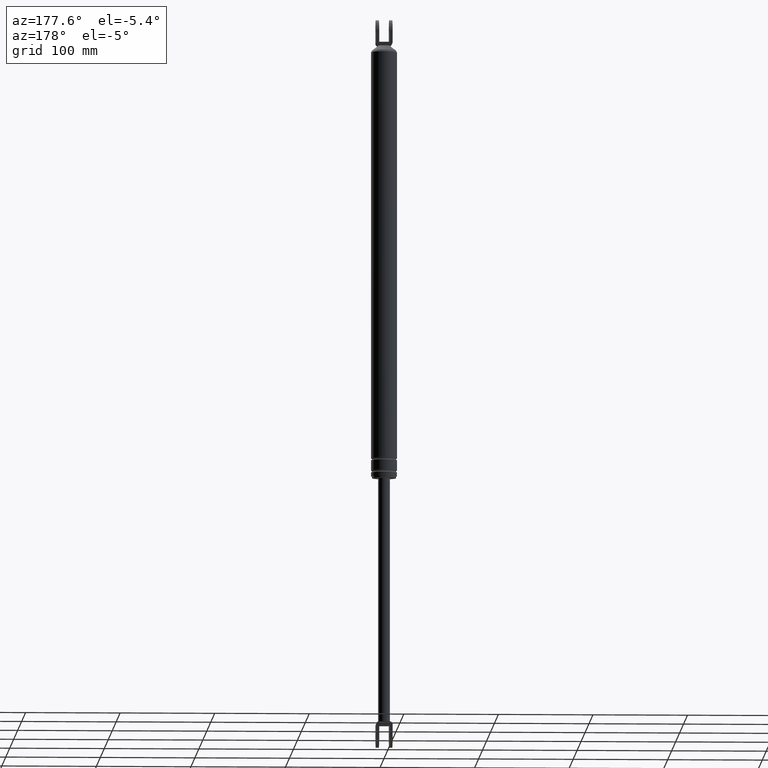
[diagram: clean part render]
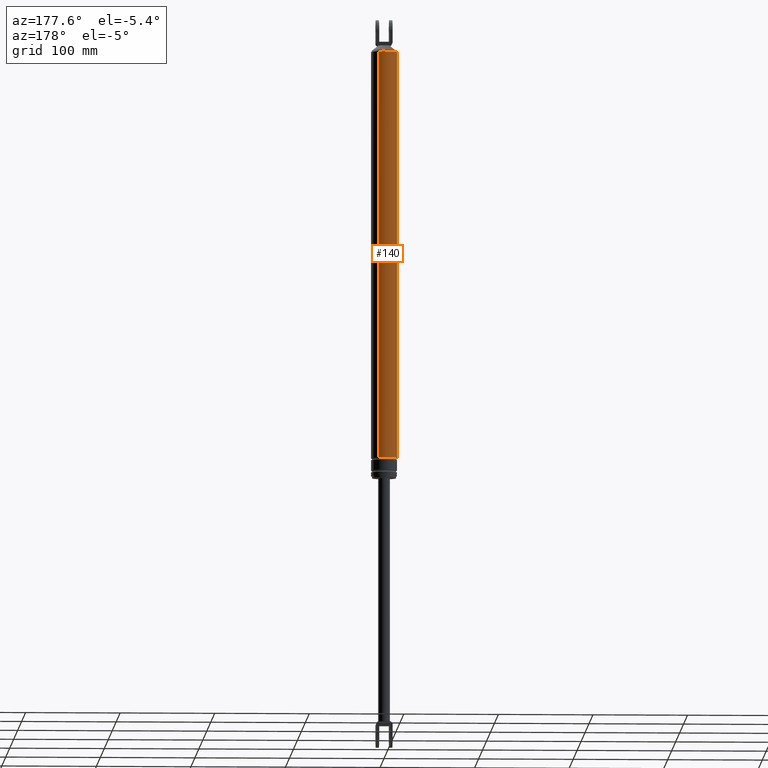
[diagram: same view with one face highlighted and labeled with its STEP entity id]
A machine part, auxiliary view. The second image highlights one B-rep face of the part: STEP entity #140.
In plain terms, the highlighted cylindrical surface (edge-blend (fillet) strip) has radius 13.7 mm, axis along (-0, 0, 1).
Its self-contained STEP definition (entity closure, byte-faithful):
#140=ADVANCED_FACE('',(#461),#460,.T.);
#460=CYLINDRICAL_SURFACE('',#1394,1.37000000000E+001);
#461=FACE_OUTER_BOUND('',#1395,.T.);
#1391=CARTESIAN_POINT('',(-3.41546421043E-012,4.03842046607E-012,5.12774968225E+002));
#1392=DIRECTION('',(-1.51010197831E-014,1.78416878900E-014,1.00000000000E+000));
#1393=DIRECTION('',(-4.84219732255E-001,-8.74946427443E-001,8.29830932274E-015));
#1394=AXIS2_PLACEMENT_3D('',#1391,#1392,#1393);
#1395=EDGE_LOOP('',(#2343,#2344,#2345,#2346,#2347,#2348,#2349));
#2343=ORIENTED_EDGE('',*,*,#2648,.F.);
#2344=ORIENTED_EDGE('',*,*,#2649,.F.);
#2345=ORIENTED_EDGE('',*,*,#2650,.F.);
#2346=ORIENTED_EDGE('',*,*,#2643,.T.);
#2347=ORIENTED_EDGE('',*,*,#2634,.T.);
#2348=ORIENTED_EDGE('',*,*,#2642,.T.);
#2349=ORIENTED_EDGE('',*,*,#2647,.F.);
#2634=EDGE_CURVE('',#3296,#3297,#3298,.T.);
#2642=EDGE_CURVE('',#3297,#3344,#3351,.T.);
#2643=EDGE_CURVE('',#3357,#3296,#3358,.T.);
#2647=EDGE_CURVE('',#3378,#3344,#3385,.T.);
#2648=EDGE_CURVE('',#3391,#3378,#3392,.T.);
#2649=EDGE_CURVE('',#3398,#3391,#3399,.T.);
#2650=EDGE_CURVE('',#3357,#3398,#3405,.T.);
#3296=VERTEX_POINT('',#4390);
#3297=VERTEX_POINT('',#4391);
#3298=CIRCLE('',#4395,1.37000000066E+001);
#3344=VERTEX_POINT('',#4420);
#3351=CIRCLE('',#4428,1.37000000007E+001);
#3357=VERTEX_POINT('',#4429);
#3358=(BOUNDED_CURVE() B_SPLINE_CURVE(1,(#4430,#4431),.UNSPECIFIED.,.F.,.F.) B_SPLINE_CURVE_WITH_KNOTS((2,2),(2.21729504881E-002,9.77827049451E-001),.UNSPECIFIED.) CURVE() GEOMETRIC_REPRESENTATION_ITEM() RATIONAL_B_SPLINE_CURVE((1.00000000000E+000,1.00000000000E+000)) REPRESENTATION_ITEM('') );
#3378=VERTEX_POINT('',#4442);
#3385=(BOUNDED_CURVE() B_SPLINE_CURVE(1,(#4447,#4448),.UNSPECIFIED.,.F.,.F.) B_SPLINE_CURVE_WITH_KNOTS((2,2),(2.21729505251E-002,9.77827049435E-001),.UNSPECIFIED.) CURVE() GEOMETRIC_REPRESENTATION_ITEM() RATIONAL_B_SPLINE_CURVE((7.50000000000E-001,7.50000000000E-001)) REPRESENTATION_ITEM('') );
#3391=VERTEX_POINT('',#4449);
#3392=CIRCLE('',#4453,1.37000000000E+001);
#3398=VERTEX_POINT('',#4454);
#3399=CIRCLE('',#4458,1.37000000000E+001);
#3405=CIRCLE('',#4462,1.37000000000E+001);
#4390=CARTESIAN_POINT('',(-6.63381033186E+000,-1.19867660559E+001,5.01999969020E+002));
#4391=CARTESIAN_POINT('',(-8.01563413917E+000,-1.11103379493E+001,5.01999969000E+002));
#4392=CARTESIAN_POINT('',(2.92622415188E-009,5.96568305866E-009,5.01999968988E+002));
#4393=DIRECTION('',(-3.14170866277E-009,-9.88007666999E-010,-1.00000000000E+000));
#4394=DIRECTION('',(-6.10485398567E-002,9.98134798402E-001,-7.94368107002E-010));
#4395=AXIS2_PLACEMENT_3D('',#4392,#4393,#4394);
#4420=CARTESIAN_POINT('',(6.63306851463E+000,1.19871765699E+001,5.01999969000E+002));
#4425=CARTESIAN_POINT('',(7.42980788004E-010,3.44965833676E-010,5.01999969000E+002));
#4426=DIRECTION('',(-8.33421791773E-012,1.65210785490E-014,-1.00000000000E+000));
#4427=DIRECTION('',(-5.85082783903E-001,-8.10973572923E-001,4.86280926287E-012));
#4428=AXIS2_PLACEMENT_3D('',#4425,#4426,#4427);
#4429=CARTESIAN_POINT('',(-6.63381033193E+000,-1.19867660561E+001,7.10000000000E+001));
#4430=CARTESIAN_POINT('',(-6.63381033189E+000,-1.19867660560E+001,7.09999999833E+001));
#4431=CARTESIAN_POINT('',(-6.63381033189E+000,-1.19867660560E+001,5.01999969013E+002));
#4442=CARTESIAN_POINT('',(6.63493738425E+000,1.19861422446E+001,7.10000000000E+001));
#4447=CARTESIAN_POINT('',(6.63381033189E+000,1.19867660560E+001,7.10000000000E+001));
#4448=CARTESIAN_POINT('',(6.63381033189E+000,1.19867660560E+001,5.01999969006E+002));
#4449=CARTESIAN_POINT('',(-1.72154769251E-001,1.36989183053E+001,7.10000000000E+001));
#4450=CARTESIAN_POINT('',(-4.76809702832E-011,-2.81028533777E-011,7.10000000000E+001));
#4451=DIRECTION('',(-5.65164330075E-016,-4.42940369744E-015,-1.00000000000E+000));
#4452=DIRECTION('',(1.25660415476E-002,-9.99921044183E-001,4.42195209180E-015));
#4453=AXIS2_PLACEMENT_3D('',#4450,#4451,#4452);
#4454=CARTESIAN_POINT('',(-9.55472894446E-001,1.36666408290E+001,7.10000000000E+001));
#4455=CARTESIAN_POINT('',(-4.76809702832E-011,-2.81028533777E-011,7.10000000000E+001));
#4456=DIRECTION('',(-5.65164330075E-016,-4.42940369744E-015,-1.00000000000E+000));
#4457=DIRECTION('',(1.25660415476E-002,-9.99921044183E-001,4.42195209180E-015));
#4458=AXIS2_PLACEMENT_3D('',#4455,#4456,#4457);
#4459=CARTESIAN_POINT('',(-4.76809702832E-011,-2.81028533777E-011,7.10000000000E+001));
#4460=DIRECTION('',(-5.65164330075E-016,-4.42940369744E-015,-1.00000000000E+000));
#4461=DIRECTION('',(1.25660415476E-002,-9.99921044183E-001,4.42195209180E-015));
#4462=AXIS2_PLACEMENT_3D('',#4459,#4460,#4461);